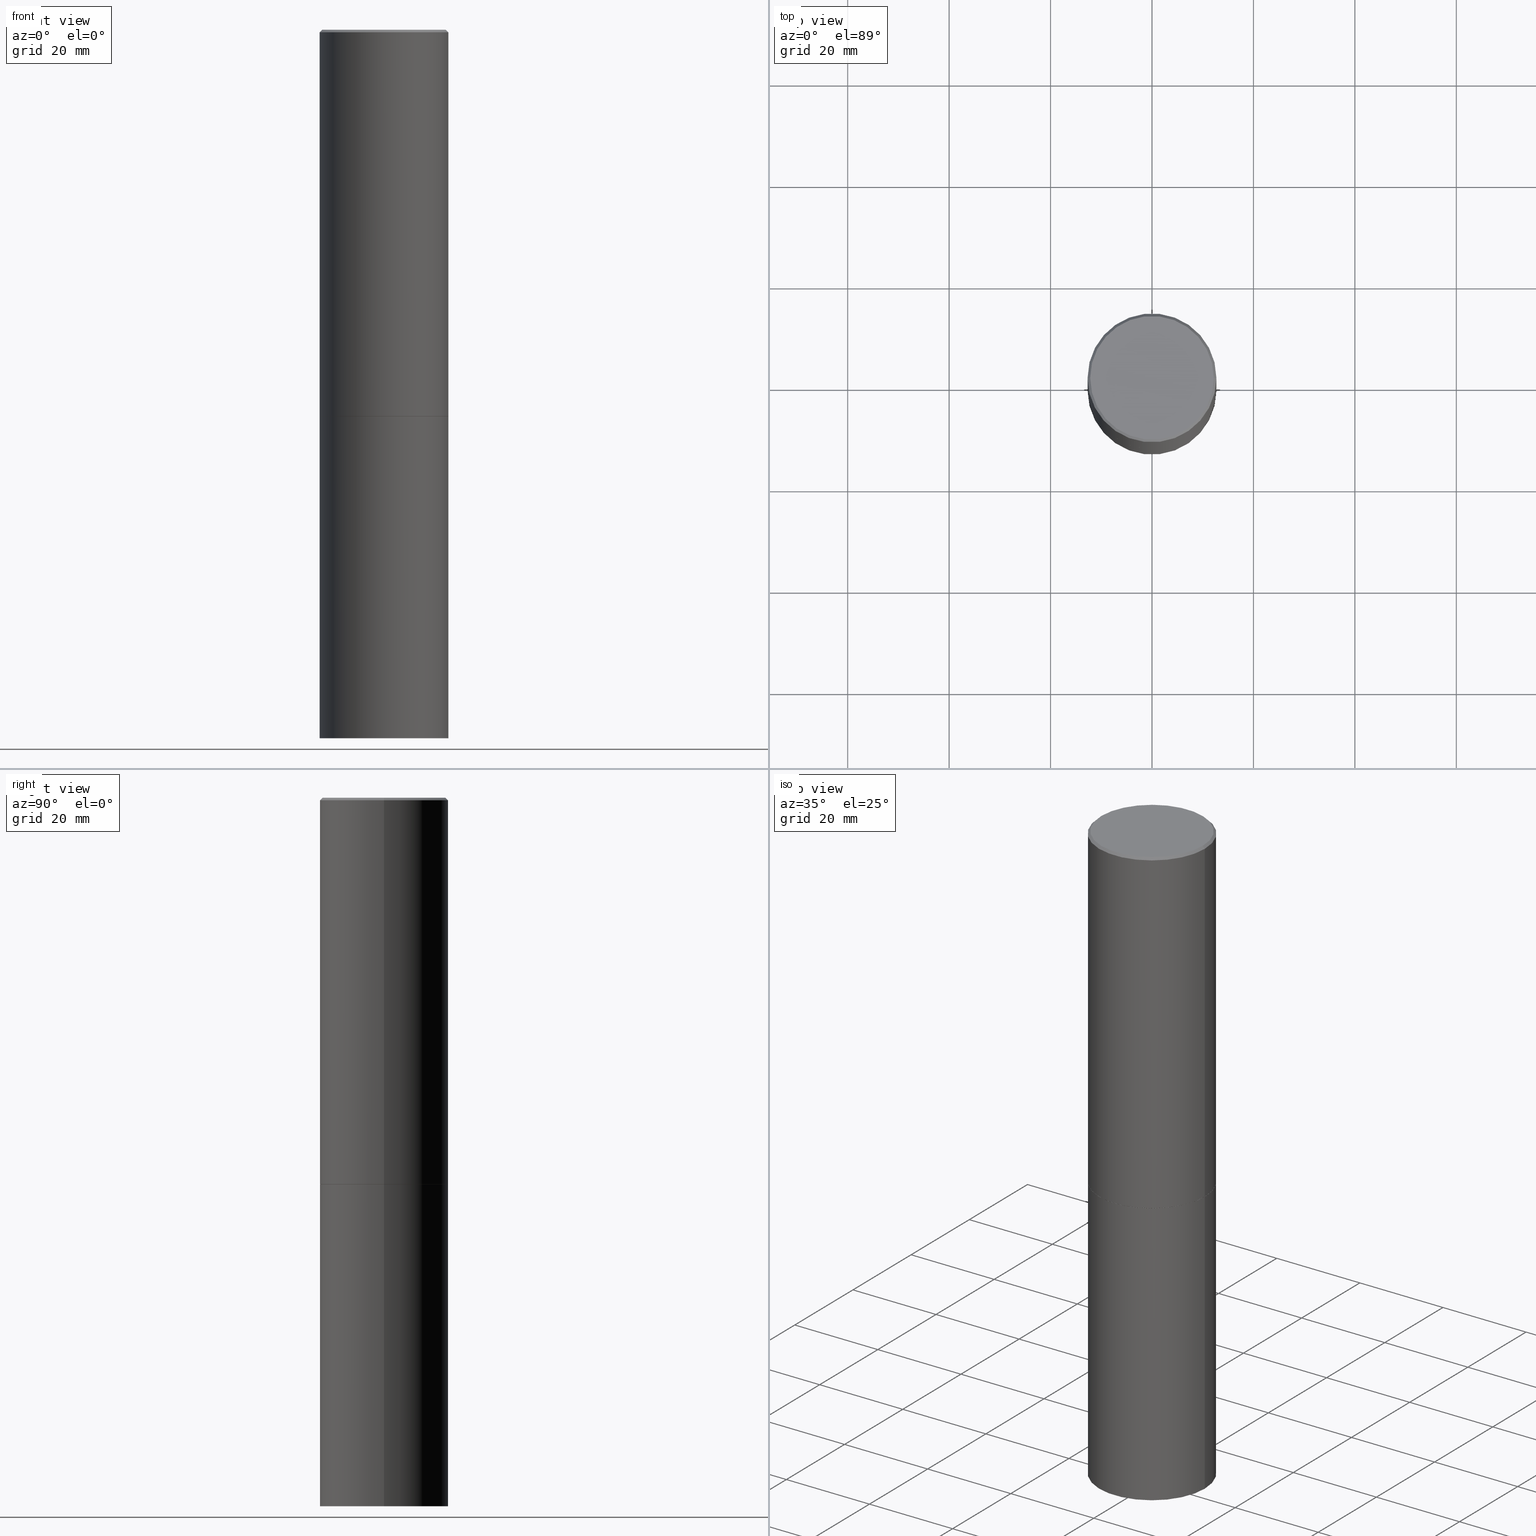
[diagram: canonical four-view strip — front | top / right | iso, engineering-drawing reading convention]
A machine part, canonical four-view strip (front | top / right | iso — engineering-drawing reading convention). The complete STEP part file that produces these views, byte-faithful:
ISO-10303-21;
HEADER;
FILE_DESCRIPTION (( 'STEP AP203' ),
    '1' );
FILE_NAME ('77460.STEP',
    '2024-05-03T15:07:04',
    ( '' ),
    ( '' ),
    'SwSTEP 2.0',
    'SolidWorks 2023',
    '' );
FILE_SCHEMA (( 'CONFIG_CONTROL_DESIGN' ));
ENDSEC;

DATA;
#1 = ORIENTED_EDGE ( 'NONE', *, *, #290, .T. ) ;
#2 = ORIENTED_EDGE ( 'NONE', *, *, #180, .F. ) ;
#3 = ORIENTED_EDGE ( 'NONE', *, *, #152, .T. ) ;
#4 = FACE_OUTER_BOUND ( 'NONE', #101, .T. ) ;
#5 = DIRECTION ( 'NONE',  ( -1.000000000000000000, 6.982962677686265922E-15, -4.876176775795935793E-29 ) ) ;
#6 = DESIGN_CONTEXT ( 'detailed design', #291, 'design' ) ;
#7 = CIRCLE ( 'NONE', #155, 0.5000000000000000000 ) ;
#8 = DIRECTION ( 'NONE',  ( 2.438088387897960049E-29, -3.491481338843145188E-15, -1.000000000000000000 ) ) ;
#9 = DIRECTION ( 'NONE',  ( 1.000000000000000000, 0.000000000000000000, 0.000000000000000000 ) ) ;
#10 = CALENDAR_DATE ( 2024, 3, 5 ) ;
#11 = APPROVAL_ROLE ( '' ) ;
#12 = CARTESIAN_POINT ( 'NONE',  ( 1.345007843401824904E-28, -1.920314736363729972E-14, -5.500000000000000000 ) ) ;
#13 = DATE_AND_TIME ( #154, #185 ) ;
#14 = EDGE_CURVE ( 'NONE', #275, #358, #294, .T. ) ;
#15 = AXIS2_PLACEMENT_3D ( 'NONE', #237, #289, #9 ) ;
#16 = CC_DESIGN_PERSON_AND_ORGANIZATION_ASSIGNMENT ( #151, #350, ( #168 ) ) ;
#17 = CARTESIAN_POINT ( 'NONE',  ( 0.5000000000000000000, -2.269462870248043307E-14, -5.500000000000000000 ) ) ;
#18 = VERTEX_POINT ( 'NONE', #266 ) ;
#19 = CLOSED_SHELL ( 'NONE', ( #348, #158, #365, #33 ) ) ;
#20 = LOCAL_TIME ( 11, 7, 4.000000000000000000, #174 ) ;
#21 = PRODUCT_RELATED_PRODUCT_CATEGORY ( 'detail', '', ( #160 ) ) ;
#22 = CARTESIAN_POINT ( 'NONE',  ( -0.5000000000000000000, 3.552713678800500929E-15, -2.459467545127452891E-29 ) ) ;
#23 = PRODUCT_DEFINITION_FORMATION_WITH_SPECIFIED_SOURCE ( 'ANY', '', #160, .NOT_KNOWN. ) ;
#24 = SHAPE_DEFINITION_REPRESENTATION ( #136, #169 ) ;
#25 = DIRECTION ( 'NONE',  ( 1.000000000000000000, -6.982962677686266711E-15, 0.000000000000000000 ) ) ;
#26 = APPROVAL_ROLE ( '' ) ;
#27 = DIRECTION ( 'NONE',  ( -2.445468806185136597E-29, 3.491481338843145583E-15, 1.000000000000000000 ) ) ;
#28 = EDGE_LOOP ( 'NONE', ( #69, #342 ) ) ;
#29 = LINE ( 'NONE', #308, #162 ) ;
#30 = ORGANIZATION ( 'UNSPECIFIED', 'UNSPECIFIED', '' ) ;
#31 = MECHANICAL_CONTEXT ( 'NONE', #274, 'mechanical' ) ;
#32 = APPROVAL_DATE_TIME ( #231, #218 ) ;
#33 = ADVANCED_FACE ( 'NONE', ( #37 ), #361, .T. ) ;
#34 = COORDINATED_UNIVERSAL_TIME_OFFSET ( 5, 0, .BEHIND. ) ;
#35 = CONICAL_SURFACE ( 'NONE', #128, 0.4999999999999997224, 0.7853981633974477239 ) ;
#36 = DIRECTION ( 'NONE',  ( 1.000000000000000000, -6.982962677686262766E-15, 0.000000000000000000 ) ) ;
#37 = FACE_OUTER_BOUND ( 'NONE', #357, .T. ) ;
#38 = VECTOR ( 'NONE', #88, 39.37007874015748143 ) ;
#39 = CC_DESIGN_DATE_AND_TIME_ASSIGNMENT ( #13, #127, ( #176 ) ) ;
#40 = DIRECTION ( 'NONE',  ( 1.000000000000000000, -6.982962677686269077E-15, 0.000000000000000000 ) ) ;
#41 = ORIENTED_EDGE ( 'NONE', *, *, #354, .F. ) ;
#42 = ORIENTED_EDGE ( 'NONE', *, *, #122, .F. ) ;
#43 = CARTESIAN_POINT ( 'NONE',  ( 0.4999999999999998335, -3.491481338843132566E-15, 2.438088387897967336E-29 ) ) ;
#44 = ORIENTED_EDGE ( 'NONE', *, *, #14, .T. ) ;
#45 = VERTEX_POINT ( 'NONE', #17 ) ;
#46 = ORIENTED_EDGE ( 'NONE', *, *, #105, .F. ) ;
#47 = CIRCLE ( 'NONE', #256, 0.4999999999999997224 ) ;
#48 = EDGE_CURVE ( 'NONE', #325, #302, #161, .T. ) ;
#49 = DIRECTION ( 'NONE',  ( 0.7071067811868130271, -2.468850131085038979E-15, 0.7071067811862817853 ) ) ;
#50 = CARTESIAN_POINT ( 'NONE',  ( 0.4989999999999999991, -1.395894239269488369E-14, -2.999999999999999556 ) ) ;
#51 = CARTESIAN_POINT ( 'NONE',  ( 7.336406418555408669E-29, -1.047444401652943478E-14, -2.999999999999999556 ) ) ;
#52 = VERTEX_POINT ( 'NONE', #297 ) ;
#53 = FACE_OUTER_BOUND ( 'NONE', #28, .T. ) ;
#54 = CARTESIAN_POINT ( 'NONE',  ( -0.4999999999999997224, 3.421651712066268085E-15, -0.02000000000000013572 ) ) ;
#55 = CARTESIAN_POINT ( 'NONE',  ( 4.890937612370306439E-31, -6.982962677686338448E-17, -0.02000000000000013572 ) ) ;
#56 = EDGE_CURVE ( 'NONE', #275, #52, #102, .T. ) ;
#57 = AXIS2_PLACEMENT_3D ( 'NONE', #132, #110, #241 ) ;
#58 = CARTESIAN_POINT ( 'NONE',  ( 7.336406418555408669E-29, -1.047444401652943478E-14, -2.999999999999999556 ) ) ;
#59 = EDGE_LOOP ( 'NONE', ( #327, #75, #251, #77 ) ) ;
#60 = ORIENTED_EDGE ( 'NONE', *, *, #290, .F. ) ;
#61 = LINE ( 'NONE', #311, #221 ) ;
#62 = DIRECTION ( 'NONE',  ( 0.7071067811865471286, -7.319954787623254468E-15, -0.7071067811865479058 ) ) ;
#63 = PERSON_AND_ORGANIZATION ( #146, #30 ) ;
#64 = DIRECTION ( 'NONE',  ( -1.000000000000000000, 6.982962677686266711E-15, 0.000000000000000000 ) ) ;
#65 = CARTESIAN_POINT ( 'NONE',  ( 0.000000000000000000, 0.000000000000000000, 0.000000000000000000 ) ) ;
#66 = CALENDAR_DATE ( 2024, 3, 5 ) ;
#67 = CIRCLE ( 'NONE', #214, 0.5000000000000000000 ) ;
#68 = APPROVAL_PERSON_ORGANIZATION ( #100, #218, #26 ) ;
#69 = ORIENTED_EDGE ( 'NONE', *, *, #48, .T. ) ;
#70 = PERSON_AND_ORGANIZATION ( #146, #30 ) ;
#71 = VECTOR ( 'NONE', #87, 39.37007874015748854 ) ;
#72 = DIRECTION ( 'NONE',  ( -2.445468806185136597E-29, 3.491481338843145583E-15, 1.000000000000000000 ) ) ;
#73 = CC_DESIGN_PERSON_AND_ORGANIZATION_ASSIGNMENT ( #150, #92, ( #160 ) ) ;
#74 = CC_DESIGN_APPROVAL ( #218, ( #23 ) ) ;
#75 = ORIENTED_EDGE ( 'NONE', *, *, #338, .F. ) ;
#76 = ORIENTED_EDGE ( 'NONE', *, *, #269, .F. ) ;
#77 = ORIENTED_EDGE ( 'NONE', *, *, #330, .T. ) ;
#78 = DIRECTION ( 'NONE',  ( 1.000000000000000000, -6.982962677686266711E-15, 4.876176775795935793E-29 ) ) ;
#79 = CC_DESIGN_APPROVAL ( #276, ( #176 ) ) ;
#80 = DIRECTION ( 'NONE',  ( -2.445468806185136597E-29, 3.491481338843145583E-15, 1.000000000000000000 ) ) ;
#81 = CC_DESIGN_PERSON_AND_ORGANIZATION_ASSIGNMENT ( #63, #285, ( #23 ) ) ;
#82 = EDGE_LOOP ( 'NONE', ( #355, #265, #44, #227 ) ) ;
#83 = CARTESIAN_POINT ( 'NONE',  ( -0.5000000000000000000, -1.128608201128286632E-14, -5.500000000000000000 ) ) ;
#84 = CIRCLE ( 'NONE', #334, 0.5000000000000000000 ) ;
#85 = CARTESIAN_POINT ( 'NONE',  ( 3.491481338843267462E-15, 0.4999999999999807931, -5.500000000000001776 ) ) ;
#86 = ORIENTED_EDGE ( 'NONE', *, *, #269, .T. ) ;
#87 = DIRECTION ( 'NONE',  ( -0.7071067811868130271, 7.493145998871311837E-15, 0.7071067811862817853 ) ) ;
#88 = DIRECTION ( 'NONE',  ( -2.445468806185136877E-29, 3.491481338843145188E-15, 1.000000000000000000 ) ) ;
#89 = PERSON_AND_ORGANIZATION ( #146, #30 ) ;
#90 = DIRECTION ( 'NONE',  ( -2.445468806185136597E-29, 3.491481338843145583E-15, 1.000000000000000000 ) ) ;
#91 = CARTESIAN_POINT ( 'NONE',  ( -0.4989999999999999991, -6.928835765086534855E-15, -2.999999999999999556 ) ) ;
#92 = PERSON_AND_ORGANIZATION_ROLE ( 'design_owner' ) ;
#93 = APPROVAL_STATUS ( 'not_yet_approved' ) ;
#94 = CC_DESIGN_PERSON_AND_ORGANIZATION_ASSIGNMENT ( #89, #207, ( #23 ) ) ;
#95 = APPLICATION_PROTOCOL_DEFINITION ( 'international standard', 'config_control_design', 1994, #274 ) ;
#96 = APPROVAL_STATUS ( 'not_yet_approved' ) ;
#97 = AXIS2_PLACEMENT_3D ( 'NONE', #65, #27, #123 ) ;
#98 = PLANE ( 'NONE',  #292 ) ;
#99 = ADVANCED_FACE ( 'NONE', ( #244 ), #273, .T. ) ;
#100 = PERSON_AND_ORGANIZATION ( #146, #30 ) ;
#101 = EDGE_LOOP ( 'NONE', ( #226, #76 ) ) ;
#102 = CIRCLE ( 'NONE', #296, 0.5000000000000000000 ) ;
#103 = CIRCLE ( 'NONE', #262, 0.4799999999999995937 ) ;
#104 = ORIENTED_EDGE ( 'NONE', *, *, #14, .F. ) ;
#105 = EDGE_CURVE ( 'NONE', #253, #187, #352, .T. ) ;
#106 = ORIENTED_EDGE ( 'NONE', *, *, #225, .F. ) ;
#107 = DIRECTION ( 'NONE',  ( -2.445468806185136597E-29, 3.491481338843145583E-15, 1.000000000000000000 ) ) ;
#108 = AXIS2_PLACEMENT_3D ( 'NONE', #51, #277, #40 ) ;
#109 = VERTEX_POINT ( 'NONE', #255 ) ;
#110 = DIRECTION ( 'NONE',  ( -2.445468806185136597E-29, 3.491481338843145583E-15, 1.000000000000000000 ) ) ;
#111 = ORIENTED_EDGE ( 'NONE', *, *, #56, .T. ) ;
#112 = CC_DESIGN_PERSON_AND_ORGANIZATION_ASSIGNMENT ( #318, #178, ( #176 ) ) ;
#113 = DIRECTION ( 'NONE',  ( -0.7071067811865471286, 2.468850131082252722E-15, -0.7071067811865479058 ) ) ;
#114 = DIRECTION ( 'NONE',  ( 1.000000000000000000, -6.982962677686269077E-15, 0.000000000000000000 ) ) ;
#115 = CARTESIAN_POINT ( 'NONE',  ( -3.131554243005659264E-46, 4.471029511141341874E-32, 1.280553747030123384E-17 ) ) ;
#116 = VERTEX_POINT ( 'NONE', #120 ) ;
#117 = ORIENTED_EDGE ( 'NONE', *, *, #206, .T. ) ;
#118 = ORIENTED_EDGE ( 'NONE', *, *, #194, .F. ) ;
#119 = CARTESIAN_POINT ( 'NONE',  ( 0.5000000000000000000, -1.396243387403372828E-14, -2.999000000000000554 ) ) ;
#120 = CARTESIAN_POINT ( 'NONE',  ( -0.4799999999999995937, 3.386736898677836436E-15, 1.280553747027767124E-17 ) ) ;
#121 = CARTESIAN_POINT ( 'NONE',  ( 3.491481338843206325E-15, 0.4999999999999895639, -3.000000000000001332 ) ) ;
#122 = EDGE_CURVE ( 'NONE', #109, #116, #103, .T. ) ;
#123 = DIRECTION ( 'NONE',  ( 1.000000000000000000, -6.982962677686267499E-15, 4.876176775795936353E-29 ) ) ;
#124 = DATE_AND_TIME ( #10, #20 ) ;
#125 = AXIS2_PLACEMENT_3D ( 'NONE', #166, #193, #301 ) ;
#126 = DATE_AND_TIME ( #153, #191 ) ;
#127 = DATE_TIME_ROLE ( 'creation_date' ) ;
#128 = AXIS2_PLACEMENT_3D ( 'NONE', #55, #167, #258 ) ;
#129 =( LENGTH_UNIT ( ) NAMED_UNIT ( * ) SI_UNIT ( $, .METRE. ) );
#130 = ADVANCED_FACE ( 'NONE', ( #196 ), #35, .T. ) ;
#131 = CARTESIAN_POINT ( 'NONE',  ( -3.131554243005659264E-46, 4.471029511141341874E-32, 1.280553747030123384E-17 ) ) ;
#132 = CARTESIAN_POINT ( 'NONE',  ( 7.336406418555408669E-29, -1.047444401652943478E-14, -2.999999999999999556 ) ) ;
#133 = ORIENTED_EDGE ( 'NONE', *, *, #56, .F. ) ;
#134 = EDGE_CURVE ( 'NONE', #45, #143, #67, .T. ) ;
#135 = DIRECTION ( 'NONE',  ( -2.445468806185136597E-29, 3.491481338843145583E-15, 1.000000000000000000 ) ) ;
#136 = PRODUCT_DEFINITION_SHAPE ( 'NONE', 'NONE',  #176 ) ;
#137 = APPROVAL_PERSON_ORGANIZATION ( #70, #276, #11 ) ;
#138 = ADVANCED_FACE ( 'NONE', ( #183 ), #298, .T. ) ;
#139 = FACE_OUTER_BOUND ( 'NONE', #243, .T. ) ;
#140 = ORIENTED_EDGE ( 'NONE', *, *, #354, .T. ) ;
#141 = DIRECTION ( 'NONE',  ( -2.445468806185136597E-29, 3.491481338843145583E-15, 1.000000000000000000 ) ) ;
#142 = DIRECTION ( 'NONE',  ( 1.000000000000000000, -6.982962677686266711E-15, 0.000000000000000000 ) ) ;
#143 = VERTEX_POINT ( 'NONE', #83 ) ;
#144 = FACE_OUTER_BOUND ( 'NONE', #197, .T. ) ;
#145 = CARTESIAN_POINT ( 'NONE',  ( 1.345007843401824904E-28, -1.920314736363729972E-14, -5.500000000000000000 ) ) ;
#146 = PERSON ( 'UNSPECIFIED', 'UNSPECIFIED', 'UNSPECIFIED', ('UNSPECIFIED'), ('UNSPECIFIED'), ('UNSPECIFIED') ) ;
#147 = EDGE_CURVE ( 'NONE', #253, #275, #163, .T. ) ;
#148 = CARTESIAN_POINT ( 'NONE',  ( 3.351822085289404787E-15, 0.4799999999999995937, -1.669508273909557867E-15 ) ) ;
#149 = AXIS2_PLACEMENT_3D ( 'NONE', #148, #8, #337 ) ;
#150 = PERSON_AND_ORGANIZATION ( #146, #30 ) ;
#151 = PERSON_AND_ORGANIZATION ( #146, #30 ) ;
#152 = EDGE_CURVE ( 'NONE', #187, #52, #336, .T. ) ;
#153 = CALENDAR_DATE ( 2024, 3, 5 ) ;
#154 = CALENDAR_DATE ( 2024, 3, 5 ) ;
#155 = AXIS2_PLACEMENT_3D ( 'NONE', #281, #224, #25 ) ;
#156 = DIRECTION ( 'NONE',  ( 2.438088387897960049E-29, -3.491481338843145188E-15, -1.000000000000000000 ) ) ;
#157 = DIMENSIONAL_EXPONENTS ( 1.000000000000000000, 0.000000000000000000, 0.000000000000000000, 0.000000000000000000, 0.000000000000000000, 0.000000000000000000, 0.000000000000000000 ) ;
#158 = ADVANCED_FACE ( 'NONE', ( #4 ), #235, .T. ) ;
#159 = EDGE_LOOP ( 'NONE', ( #111, #339, #2, #104 ) ) ;
#160 = PRODUCT ( '77460', '77460', '', ( #31 ) ) ;
#161 = CIRCLE ( 'NONE', #267, 0.5000000000000000000 ) ;
#162 = VECTOR ( 'NONE', #284, 39.37007874015748143 ) ;
#163 = LINE ( 'NONE', #332, #229 ) ;
#164 = ORIENTED_EDGE ( 'NONE', *, *, #147, .T. ) ;
#165 = ADVANCED_FACE ( 'NONE', ( #139 ), #261, .T. ) ;
#166 = CARTESIAN_POINT ( 'NONE',  ( 0.000000000000000000, 0.000000000000000000, 0.000000000000000000 ) ) ;
#167 = DIRECTION ( 'NONE',  ( 2.445468806185136597E-29, -3.491481338843145583E-15, -1.000000000000000000 ) ) ;
#168 = SECURITY_CLASSIFICATION ( '', '', #201 ) ;
#169 = ADVANCED_BREP_SHAPE_REPRESENTATION ( '77460', ( #295, #181, #15 ), #204 ) ;
#170 = CC_DESIGN_DATE_AND_TIME_ASSIGNMENT ( #124, #233, ( #168 ) ) ;
#171 = CARTESIAN_POINT ( 'NONE',  ( 7.336406418555408669E-29, -1.047444401652943478E-14, -2.999999999999999556 ) ) ;
#172 = CYLINDRICAL_SURFACE ( 'NONE', #366, 0.5000000000000000000 ) ;
#173 = FACE_OUTER_BOUND ( 'NONE', #335, .T. ) ;
#174 = COORDINATED_UNIVERSAL_TIME_OFFSET ( 5, 0, .BEHIND. ) ;
#175 = COORDINATED_UNIVERSAL_TIME_OFFSET ( 5, 0, .BEHIND. ) ;
#176 = PRODUCT_DEFINITION ( 'UNKNOWN', '', #23, #6 ) ;
#177 = DATE_AND_TIME ( #66, #239 ) ;
#178 = PERSON_AND_ORGANIZATION_ROLE ( 'creator' ) ;
#179 = CLOSED_SHELL ( 'NONE', ( #138, #99, #186, #130, #199, #165, #211, #312 ) ) ;
#180 = EDGE_CURVE ( 'NONE', #358, #18, #47, .T. ) ;
#181 = MANIFOLD_SOLID_BREP ( 'Body-Move/Copy2[2]', #179 ) ;
#182 = DIRECTION ( 'NONE',  ( 1.000000000000000000, -6.982962677686266711E-15, 0.000000000000000000 ) ) ;
#183 = FACE_OUTER_BOUND ( 'NONE', #278, .T. ) ;
#184 = DIRECTION ( 'NONE',  ( 1.000000000000000000, -6.982962677686266711E-15, 0.000000000000000000 ) ) ;
#185 = LOCAL_TIME ( 11, 7, 4.000000000000000000, #34 ) ;
#186 = ADVANCED_FACE ( 'NONE', ( #345 ), #268, .T. ) ;
#187 = VERTEX_POINT ( 'NONE', #363 ) ;
#188 = ORIENTED_EDGE ( 'NONE', *, *, #338, .T. ) ;
#189 = ORIENTED_EDGE ( 'NONE', *, *, #147, .F. ) ;
#190 = CIRCLE ( 'NONE', #288, 0.5000000000000000000 ) ;
#191 = LOCAL_TIME ( 11, 7, 4.000000000000000000, #315 ) ;
#192 = DIRECTION ( 'NONE',  ( 1.000000000000000000, -6.982962677686266711E-15, 0.000000000000000000 ) ) ;
#193 = DIRECTION ( 'NONE',  ( -2.445468806185136597E-29, 3.491481338843145583E-15, 1.000000000000000000 ) ) ;
#194 = EDGE_CURVE ( 'NONE', #116, #18, #272, .T. ) ;
#195 = UNCERTAINTY_MEASURE_WITH_UNIT (LENGTH_MEASURE( 1.000000000000000082E-05 ), #210, 'distance_accuracy_value', 'NONE');
#196 = FACE_OUTER_BOUND ( 'NONE', #59, .T. ) ;
#197 = EDGE_LOOP ( 'NONE', ( #341, #140, #309, #60 ) ) ;
#198 = VECTOR ( 'NONE', #248, 39.37007874015748143 ) ;
#199 = ADVANCED_FACE ( 'NONE', ( #220 ), #333, .T. ) ;
#200 = CARTESIAN_POINT ( 'NONE',  ( -0.5000000000000000000, -1.128608201128286632E-14, -2.999999999999999556 ) ) ;
#201 = SECURITY_CLASSIFICATION_LEVEL ( 'unclassified' ) ;
#202 = CARTESIAN_POINT ( 'NONE',  ( 4.890937612370306439E-31, -6.982962677686338448E-17, -0.02000000000000013572 ) ) ;
#203 = CALENDAR_DATE ( 2024, 3, 5 ) ;
#204 =( GEOMETRIC_REPRESENTATION_CONTEXT ( 3 ) GLOBAL_UNCERTAINTY_ASSIGNED_CONTEXT ( ( #195 ) ) GLOBAL_UNIT_ASSIGNED_CONTEXT ( ( #210, #351, #323 ) ) REPRESENTATION_CONTEXT ( 'NONE', 'WORKASPACE' ) );
#205 = APPROVAL_ROLE ( '' ) ;
#206 = EDGE_CURVE ( 'NONE', #187, #253, #322, .T. ) ;
#207 = PERSON_AND_ORGANIZATION_ROLE ( 'design_supplier' ) ;
#208 = DIRECTION ( 'NONE',  ( -2.445468806185136597E-29, 3.491481338843145583E-15, 1.000000000000000000 ) ) ;
#209 = AXIS2_PLACEMENT_3D ( 'NONE', #85, #305, #5 ) ;
#210 =( CONVERSION_BASED_UNIT ( 'INCH', #240 ) LENGTH_UNIT ( ) NAMED_UNIT ( #157 ) );
#211 = ADVANCED_FACE ( 'NONE', ( #264 ), #247, .F. ) ;
#212 = ORIENTED_EDGE ( 'NONE', *, *, #263, .F. ) ;
#213 = CARTESIAN_POINT ( 'NONE',  ( 7.333960949749226429E-29, -1.047095253519059492E-14, -2.999000000000000554 ) ) ;
#214 = AXIS2_PLACEMENT_3D ( 'NONE', #12, #208, #36 ) ;
#215 = CARTESIAN_POINT ( 'NONE',  ( 0.000000000000000000, 0.000000000000000000, 0.000000000000000000 ) ) ;
#216 = ORIENTED_EDGE ( 'NONE', *, *, #152, .F. ) ;
#217 = ORIENTED_EDGE ( 'NONE', *, *, #122, .T. ) ;
#218 = APPROVAL ( #93, 'UNSPECIFIED' ) ;
#219 = CARTESIAN_POINT ( 'NONE',  ( 7.336406418555408669E-29, -1.047444401652943478E-14, -2.999999999999999556 ) ) ;
#220 = FACE_OUTER_BOUND ( 'NONE', #82, .T. ) ;
#221 = VECTOR ( 'NONE', #62, 39.37007874015748143 ) ;
#222 = EDGE_LOOP ( 'NONE', ( #42, #293, #252, #118 ) ) ;
#223 = DIRECTION ( 'NONE',  ( -2.445468806185136597E-29, 3.491481338843145583E-15, 1.000000000000000000 ) ) ;
#224 = DIRECTION ( 'NONE',  ( -2.445468806185136597E-29, 3.491481338843145583E-15, 1.000000000000000000 ) ) ;
#225 = EDGE_CURVE ( 'NONE', #302, #325, #84, .T. ) ;
#226 = ORIENTED_EDGE ( 'NONE', *, *, #134, .F. ) ;
#227 = ORIENTED_EDGE ( 'NONE', *, *, #330, .F. ) ;
#228 = VECTOR ( 'NONE', #356, 39.37007874015748143 ) ;
#229 = VECTOR ( 'NONE', #49, 39.37007874015748854 ) ;
#230 = LINE ( 'NONE', #344, #38 ) ;
#231 = DATE_AND_TIME ( #203, #236 ) ;
#232 = CARTESIAN_POINT ( 'NONE',  ( 4.890937612370306439E-31, -6.982962677686338448E-17, -0.02000000000000013572 ) ) ;
#233 = DATE_TIME_ROLE ( 'classification_date' ) ;
#234 = EDGE_CURVE ( 'NONE', #52, #18, #29, .T. ) ;
#235 = PLANE ( 'NONE',  #209 ) ;
#236 = LOCAL_TIME ( 11, 7, 4.000000000000000000, #175 ) ;
#237 = CARTESIAN_POINT ( 'NONE',  ( 0.000000000000000000, 0.000000000000000000, 0.000000000000000000 ) ) ;
#238 = EDGE_CURVE ( 'NONE', #109, #358, #61, .T. ) ;
#239 = LOCAL_TIME ( 11, 7, 4.000000000000000000, #316 ) ;
#240 = LENGTH_MEASURE_WITH_UNIT ( LENGTH_MEASURE( 0.02539999999999999897 ), #129 );
#241 = DIRECTION ( 'NONE',  ( 1.000000000000000000, -6.982962677686269077E-15, 0.000000000000000000 ) ) ;
#242 = DIRECTION ( 'NONE',  ( -2.445468806185136597E-29, 3.491481338843145583E-15, 1.000000000000000000 ) ) ;
#243 = EDGE_LOOP ( 'NONE', ( #216, #117, #164, #212 ) ) ;
#244 = FACE_OUTER_BOUND ( 'NONE', #159, .T. ) ;
#245 = AXIS2_PLACEMENT_3D ( 'NONE', #171, #80, #114 ) ;
#246 = CC_DESIGN_SECURITY_CLASSIFICATION ( #168, ( #23 ) ) ;
#247 = PLANE ( 'NONE',  #306 ) ;
#248 = DIRECTION ( 'NONE',  ( -2.445468806185136877E-29, 3.491481338843145188E-15, 1.000000000000000000 ) ) ;
#249 = DIRECTION ( 'NONE',  ( 1.000000000000000000, -6.982962677686269077E-15, 0.000000000000000000 ) ) ;
#250 = EDGE_LOOP ( 'NONE', ( #46, #343 ) ) ;
#251 = ORIENTED_EDGE ( 'NONE', *, *, #194, .T. ) ;
#252 = ORIENTED_EDGE ( 'NONE', *, *, #180, .T. ) ;
#253 = VERTEX_POINT ( 'NONE', #50 ) ;
#254 = DIRECTION ( 'NONE',  ( -2.445468806185136597E-29, 3.491481338843145583E-15, 1.000000000000000000 ) ) ;
#255 = CARTESIAN_POINT ( 'NONE',  ( 0.4799999999999995937, -3.396558832296480127E-15, 1.280553747032483033E-17 ) ) ;
#256 = AXIS2_PLACEMENT_3D ( 'NONE', #232, #279, #142 ) ;
#257 = CARTESIAN_POINT ( 'NONE',  ( 0.5000000000000000000, -1.396592535537256813E-14, -2.999999999999999556 ) ) ;
#258 = DIRECTION ( 'NONE',  ( -1.000000000000000000, 6.982962677686266711E-15, 0.000000000000000000 ) ) ;
#259 = VECTOR ( 'NONE', #113, 39.37007874015748143 ) ;
#260 = APPROVAL ( #96, 'UNSPECIFIED' ) ;
#261 = CONICAL_SURFACE ( 'NONE', #245, 0.4989999999999999991, 0.7853981633978239785 ) ;
#262 = AXIS2_PLACEMENT_3D ( 'NONE', #115, #90, #314 ) ;
#263 = EDGE_CURVE ( 'NONE', #52, #275, #7, .T. ) ;
#264 = FACE_OUTER_BOUND ( 'NONE', #250, .T. ) ;
#265 = ORIENTED_EDGE ( 'NONE', *, *, #263, .T. ) ;
#266 = CARTESIAN_POINT ( 'NONE',  ( -0.4999999999999997224, 3.421651712066268085E-15, -0.02000000000000013572 ) ) ;
#267 = AXIS2_PLACEMENT_3D ( 'NONE', #364, #242, #184 ) ;
#268 = CONICAL_SURFACE ( 'NONE', #317, 0.4999999999999997224, 0.7853981633974477239 ) ;
#269 = EDGE_CURVE ( 'NONE', #143, #45, #190, .T. ) ;
#270 = APPROVAL_PERSON_ORGANIZATION ( #347, #260, #205 ) ;
#271 = DIRECTION ( 'NONE',  ( 1.000000000000000000, -6.982962677686266711E-15, 0.000000000000000000 ) ) ;
#272 = LINE ( 'NONE', #54, #259 ) ;
#273 = CYLINDRICAL_SURFACE ( 'NONE', #97, 0.4999999999999998335 ) ;
#274 = APPLICATION_CONTEXT ( 'configuration controlled 3d designs of mechanical parts and assemblies' ) ;
#275 = VERTEX_POINT ( 'NONE', #119 ) ;
#276 = APPROVAL ( #346, 'UNSPECIFIED' ) ;
#277 = DIRECTION ( 'NONE',  ( -2.445468806185136597E-29, 3.491481338843145583E-15, 1.000000000000000000 ) ) ;
#278 = EDGE_LOOP ( 'NONE', ( #326, #3, #133, #189 ) ) ;
#279 = DIRECTION ( 'NONE',  ( -2.445468806185136597E-29, 3.491481338843145583E-15, 1.000000000000000000 ) ) ;
#280 = DIRECTION ( 'NONE',  ( -2.445468806185136597E-29, 3.491481338843145583E-15, 1.000000000000000000 ) ) ;
#281 = CARTESIAN_POINT ( 'NONE',  ( 7.333960949749226429E-29, -1.047095253519059492E-14, -2.999000000000000554 ) ) ;
#282 = APPROVAL_DATE_TIME ( #126, #260 ) ;
#283 = DIRECTION ( 'NONE',  ( -2.445468806185136597E-29, 3.491481338843145583E-15, 1.000000000000000000 ) ) ;
#284 = DIRECTION ( 'NONE',  ( -2.445468806185136877E-29, 3.491481338843145188E-15, 1.000000000000000000 ) ) ;
#285 = PERSON_AND_ORGANIZATION_ROLE ( 'creator' ) ;
#286 = AXIS2_PLACEMENT_3D ( 'NONE', #58, #280, #249 ) ;
#287 = APPROVAL_DATE_TIME ( #177, #276 ) ;
#288 = AXIS2_PLACEMENT_3D ( 'NONE', #145, #254, #304 ) ;
#289 = DIRECTION ( 'NONE',  ( 0.000000000000000000, 0.000000000000000000, 1.000000000000000000 ) ) ;
#290 = EDGE_CURVE ( 'NONE', #45, #325, #230, .T. ) ;
#291 = APPLICATION_CONTEXT ( 'configuration controlled 3d designs of mechanical parts and assemblies' ) ;
#292 = AXIS2_PLACEMENT_3D ( 'NONE', #121, #156, #320 ) ;
#293 = ORIENTED_EDGE ( 'NONE', *, *, #238, .T. ) ;
#294 = LINE ( 'NONE', #43, #228 ) ;
#295 = MANIFOLD_SOLID_BREP ( 'Body-Move/Copy2[1]', #19 ) ;
#296 = AXIS2_PLACEMENT_3D ( 'NONE', #213, #72, #271 ) ;
#297 = CARTESIAN_POINT ( 'NONE',  ( -0.5000000000000000000, -1.717677402183226998E-15, -2.999000000000000554 ) ) ;
#298 = CONICAL_SURFACE ( 'NONE', #57, 0.4989999999999999991, 0.7853981633978239785 ) ;
#299 = LINE ( 'NONE', #22, #198 ) ;
#300 = PLANE ( 'NONE',  #149 ) ;
#301 = DIRECTION ( 'NONE',  ( 1.000000000000000000, -6.982962677686267499E-15, 4.876176775795936353E-29 ) ) ;
#302 = VERTEX_POINT ( 'NONE', #200 ) ;
#303 = CARTESIAN_POINT ( 'NONE',  ( 0.4999999999999997224, -3.500078625662627502E-15, -0.02000000000000013572 ) ) ;
#304 = DIRECTION ( 'NONE',  ( 1.000000000000000000, -6.982962677686262766E-15, 0.000000000000000000 ) ) ;
#305 = DIRECTION ( 'NONE',  ( 2.438088387897960049E-29, -3.491481338843145188E-15, -1.000000000000000000 ) ) ;
#306 = AXIS2_PLACEMENT_3D ( 'NONE', #362, #329, #360 ) ;
#307 = CC_DESIGN_APPROVAL ( #260, ( #168 ) ) ;
#308 = CARTESIAN_POINT ( 'NONE',  ( -0.4999999999999998335, 3.552713678800499746E-15, -2.459467545127452330E-29 ) ) ;
#309 = ORIENTED_EDGE ( 'NONE', *, *, #48, .F. ) ;
#310 = DIRECTION ( 'NONE',  ( 1.000000000000000000, -6.982962677686266711E-15, 4.876036955247133327E-29 ) ) ;
#311 = CARTESIAN_POINT ( 'NONE',  ( 0.4999999999999997224, -3.500078625662627502E-15, -0.02000000000000013572 ) ) ;
#312 = ADVANCED_FACE ( 'NONE', ( #173 ), #300, .F. ) ;
#313 = DIRECTION ( 'NONE',  ( 2.445468806185136597E-29, -3.491481338843145583E-15, -1.000000000000000000 ) ) ;
#314 = DIRECTION ( 'NONE',  ( 1.000000000000000000, -6.982962677686266711E-15, 4.876036955247133327E-29 ) ) ;
#315 = COORDINATED_UNIVERSAL_TIME_OFFSET ( 5, 0, .BEHIND. ) ;
#316 = COORDINATED_UNIVERSAL_TIME_OFFSET ( 5, 0, .BEHIND. ) ;
#317 = AXIS2_PLACEMENT_3D ( 'NONE', #202, #313, #64 ) ;
#318 = PERSON_AND_ORGANIZATION ( #146, #30 ) ;
#319 = APPLICATION_PROTOCOL_DEFINITION ( 'international standard', 'config_control_design', 1994, #291 ) ;
#320 = DIRECTION ( 'NONE',  ( -1.000000000000000000, 6.982962677686265922E-15, -4.876176775795935793E-29 ) ) ;
#321 = AXIS2_PLACEMENT_3D ( 'NONE', #215, #107, #78 ) ;
#322 = CIRCLE ( 'NONE', #108, 0.4989999999999999991 ) ;
#323 =( NAMED_UNIT ( * ) SI_UNIT ( $, .STERADIAN. ) SOLID_ANGLE_UNIT ( ) );
#324 = CARTESIAN_POINT ( 'NONE',  ( 4.890937612370306439E-31, -6.982962677686338448E-17, -0.02000000000000013572 ) ) ;
#325 = VERTEX_POINT ( 'NONE', #257 ) ;
#326 = ORIENTED_EDGE ( 'NONE', *, *, #105, .T. ) ;
#327 = ORIENTED_EDGE ( 'NONE', *, *, #238, .F. ) ;
#328 = CIRCLE ( 'NONE', #349, 0.4799999999999995937 ) ;
#329 = DIRECTION ( 'NONE',  ( -2.438088387897960049E-29, 3.491481338843145188E-15, 1.000000000000000000 ) ) ;
#330 = EDGE_CURVE ( 'NONE', #18, #358, #359, .T. ) ;
#331 = DIRECTION ( 'NONE',  ( 1.000000000000000000, -6.982962677686266711E-15, 4.876176775795935793E-29 ) ) ;
#332 = CARTESIAN_POINT ( 'NONE',  ( 0.4989999999999999991, -1.395894239269488369E-14, -2.999999999999999556 ) ) ;
#333 = CYLINDRICAL_SURFACE ( 'NONE', #125, 0.4999999999999998335 ) ;
#334 = AXIS2_PLACEMENT_3D ( 'NONE', #219, #141, #192 ) ;
#335 = EDGE_LOOP ( 'NONE', ( #188, #217 ) ) ;
#336 = LINE ( 'NONE', #91, #71 ) ;
#337 = DIRECTION ( 'NONE',  ( -1.000000000000000000, 6.982962677686265922E-15, -4.876176775795935793E-29 ) ) ;
#338 = EDGE_CURVE ( 'NONE', #116, #109, #328, .T. ) ;
#339 = ORIENTED_EDGE ( 'NONE', *, *, #234, .T. ) ;
#340 = CARTESIAN_POINT ( 'NONE',  ( 0.000000000000000000, 0.000000000000000000, 0.000000000000000000 ) ) ;
#341 = ORIENTED_EDGE ( 'NONE', *, *, #134, .T. ) ;
#342 = ORIENTED_EDGE ( 'NONE', *, *, #225, .T. ) ;
#343 = ORIENTED_EDGE ( 'NONE', *, *, #206, .F. ) ;
#344 = CARTESIAN_POINT ( 'NONE',  ( 0.5000000000000000000, -3.491481338843133355E-15, 2.438088387897967896E-29 ) ) ;
#345 = FACE_OUTER_BOUND ( 'NONE', #222, .T. ) ;
#346 = APPROVAL_STATUS ( 'not_yet_approved' ) ;
#347 = PERSON_AND_ORGANIZATION ( #146, #30 ) ;
#348 = ADVANCED_FACE ( 'NONE', ( #144 ), #172, .T. ) ;
#349 = AXIS2_PLACEMENT_3D ( 'NONE', #131, #223, #310 ) ;
#350 = PERSON_AND_ORGANIZATION_ROLE ( 'classification_officer' ) ;
#351 =( NAMED_UNIT ( * ) PLANE_ANGLE_UNIT ( ) SI_UNIT ( $, .RADIAN. ) );
#352 = CIRCLE ( 'NONE', #286, 0.4989999999999999991 ) ;
#353 = AXIS2_PLACEMENT_3D ( 'NONE', #324, #135, #182 ) ;
#354 = EDGE_CURVE ( 'NONE', #143, #302, #299, .T. ) ;
#355 = ORIENTED_EDGE ( 'NONE', *, *, #234, .F. ) ;
#356 = DIRECTION ( 'NONE',  ( -2.445468806185136877E-29, 3.491481338843145188E-15, 1.000000000000000000 ) ) ;
#357 = EDGE_LOOP ( 'NONE', ( #41, #86, #1, #106 ) ) ;
#358 = VERTEX_POINT ( 'NONE', #303 ) ;
#359 = CIRCLE ( 'NONE', #353, 0.4999999999999997224 ) ;
#360 = DIRECTION ( 'NONE',  ( 1.000000000000000000, -6.982962677686265922E-15, 4.876176775795935793E-29 ) ) ;
#361 = CYLINDRICAL_SURFACE ( 'NONE', #321, 0.5000000000000000000 ) ;
#362 = CARTESIAN_POINT ( 'NONE',  ( 7.336406418555408669E-29, -1.047444401652943478E-14, -2.999999999999999556 ) ) ;
#363 = CARTESIAN_POINT ( 'NONE',  ( -0.4989999999999999991, -6.923537310738314819E-15, -2.999999999999999556 ) ) ;
#364 = CARTESIAN_POINT ( 'NONE',  ( 7.336406418555408669E-29, -1.047444401652943478E-14, -2.999999999999999556 ) ) ;
#365 = ADVANCED_FACE ( 'NONE', ( #53 ), #98, .F. ) ;
#366 = AXIS2_PLACEMENT_3D ( 'NONE', #340, #283, #331 ) ;
ENDSEC;
END-ISO-10303-21;
